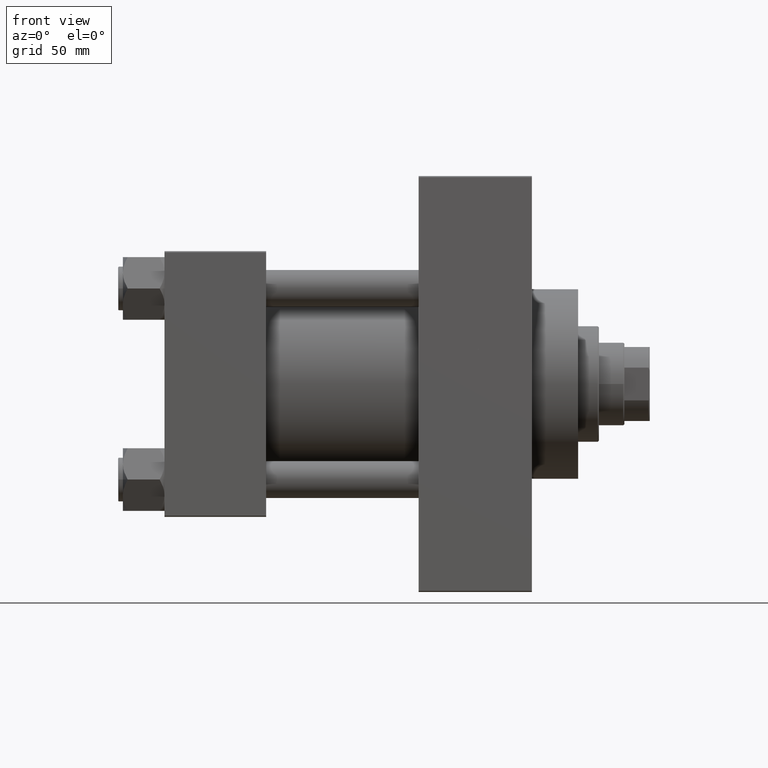
[diagram: clean part render]
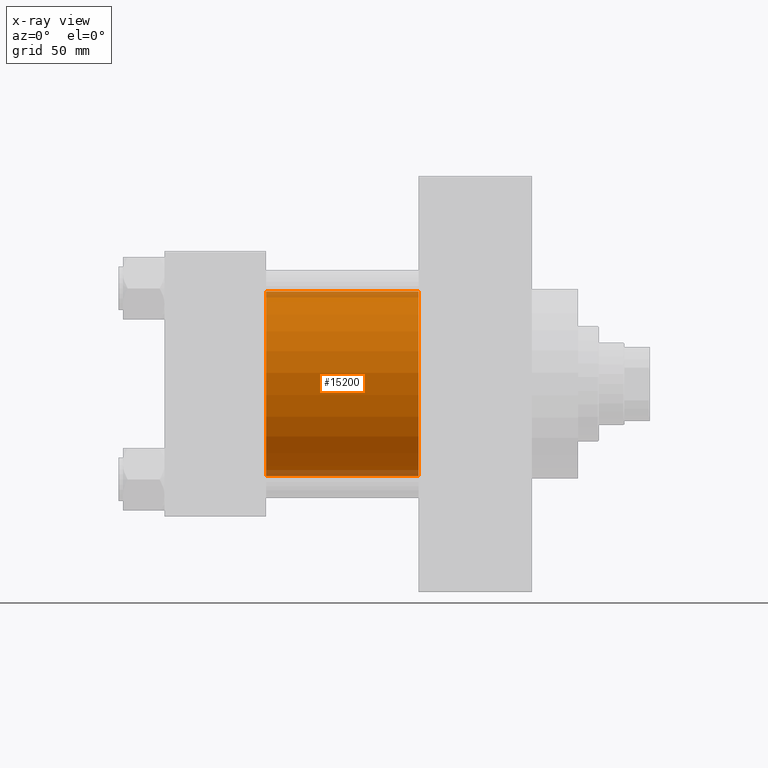
[diagram: x-ray — body ghosted, one internal face saturated and labeled with its STEP entity id]
A machine part, front view, then the same camera in x-ray: the body is ghosted and one INTERNAL B-rep face — a face not visible from any outside direction — is saturated and labeled: STEP entity #15200.
In plain terms, the highlighted cylindrical surface (partial cylindrical patch) has radius 40 mm, axis along (-1, -0, -0).
Its self-contained STEP definition (entity closure, byte-faithful):
#1176 = DIRECTION ( 'NONE',  ( 0.000000000000000000, 0.000000000000000000, 1.000000000000000000 ) ) ;
#1741 = DIRECTION ( 'NONE',  ( 1.000000000000000000, 0.000000000000000000, 0.000000000000000000 ) ) ;
#3571 = EDGE_CURVE ( 'NONE', #38241, #24118, #25833, .T. ) ;
#5422 = FACE_OUTER_BOUND ( 'NONE', #12580, .T. ) ;
#7029 = CARTESIAN_POINT ( 'NONE',  ( 44.00000000000000000, -2.602085213965210642E-15, 40.00000000000000000 ) ) ;
#11308 = CARTESIAN_POINT ( 'NONE',  ( 110.0000000000000000, -2.602085213965210642E-15, 40.00000000000000000 ) ) ;
#12427 = VECTOR ( 'NONE', #46679, 1000.000000000000000 ) ;
#12580 = EDGE_LOOP ( 'NONE', ( #19134, #38966, #37477, #27670 ) ) ;
#12785 = CARTESIAN_POINT ( 'NONE',  ( 110.0000000000000000, -2.602085213965210642E-15, 0.000000000000000000 ) ) ;
#13827 = VERTEX_POINT ( 'NONE', #44173 ) ;
#14213 = CARTESIAN_POINT ( 'NONE',  ( 110.0000000000000000, 2.296501982624201990E-15, -40.00000000000000000 ) ) ;
#15200 = ADVANCED_FACE ( 'NONE', ( #5422 ), #23828, .F. ) ;
#15343 = EDGE_CURVE ( 'NONE', #24118, #13827, #25078, .T. ) ;
#16960 = AXIS2_PLACEMENT_3D ( 'NONE', #12785, #1741, #39272 ) ;
#17252 = DIRECTION ( 'NONE',  ( -1.000000000000000000, -0.000000000000000000, -0.000000000000000000 ) ) ;
#19134 = ORIENTED_EDGE ( 'NONE', *, *, #3571, .T. ) ;
#23761 = CARTESIAN_POINT ( 'NONE',  ( 110.0000000000000000, -2.602085213965210642E-15, 40.00000000000000000 ) ) ;
#23828 = CYLINDRICAL_SURFACE ( 'NONE', #45986, 40.00000000000000000 ) ;
#24118 = VERTEX_POINT ( 'NONE', #24693 ) ;
#24693 = CARTESIAN_POINT ( 'NONE',  ( 110.0000000000000000, 2.296501982624201990E-15, -40.00000000000000000 ) ) ;
#25078 = LINE ( 'NONE', #14213, #39580 ) ;
#25199 = EDGE_CURVE ( 'NONE', #38241, #25308, #27793, .T. ) ;
#25308 = VERTEX_POINT ( 'NONE', #7029 ) ;
#25833 = CIRCLE ( 'NONE', #16960, 40.00000000000000000 ) ;
#27670 = ORIENTED_EDGE ( 'NONE', *, *, #25199, .F. ) ;
#27793 = LINE ( 'NONE', #23761, #12427 ) ;
#28596 = CARTESIAN_POINT ( 'NONE',  ( 110.0000000000000000, -2.602085213965210642E-15, 0.000000000000000000 ) ) ;
#30868 = CARTESIAN_POINT ( 'NONE',  ( 44.00000000000000000, -2.602085213965210642E-15, 0.000000000000000000 ) ) ;
#31035 = AXIS2_PLACEMENT_3D ( 'NONE', #30868, #38443, #46230 ) ;
#32275 = EDGE_CURVE ( 'NONE', #25308, #13827, #38316, .T. ) ;
#35679 = DIRECTION ( 'NONE',  ( -1.000000000000000000, -0.000000000000000000, -0.000000000000000000 ) ) ;
#37477 = ORIENTED_EDGE ( 'NONE', *, *, #32275, .F. ) ;
#38241 = VERTEX_POINT ( 'NONE', #11308 ) ;
#38316 = CIRCLE ( 'NONE', #31035, 40.00000000000000000 ) ;
#38443 = DIRECTION ( 'NONE',  ( 1.000000000000000000, 0.000000000000000000, 0.000000000000000000 ) ) ;
#38966 = ORIENTED_EDGE ( 'NONE', *, *, #15343, .T. ) ;
#39272 = DIRECTION ( 'NONE',  ( 0.000000000000000000, 0.000000000000000000, -1.000000000000000000 ) ) ;
#39580 = VECTOR ( 'NONE', #17252, 1000.000000000000000 ) ;
#44173 = CARTESIAN_POINT ( 'NONE',  ( 44.00000000000000000, 2.296501982624201990E-15, -40.00000000000000000 ) ) ;
#45986 = AXIS2_PLACEMENT_3D ( 'NONE', #28596, #35679, #1176 ) ;
#46230 = DIRECTION ( 'NONE',  ( 0.000000000000000000, 0.000000000000000000, -1.000000000000000000 ) ) ;
#46679 = DIRECTION ( 'NONE',  ( -1.000000000000000000, -0.000000000000000000, -0.000000000000000000 ) ) ;